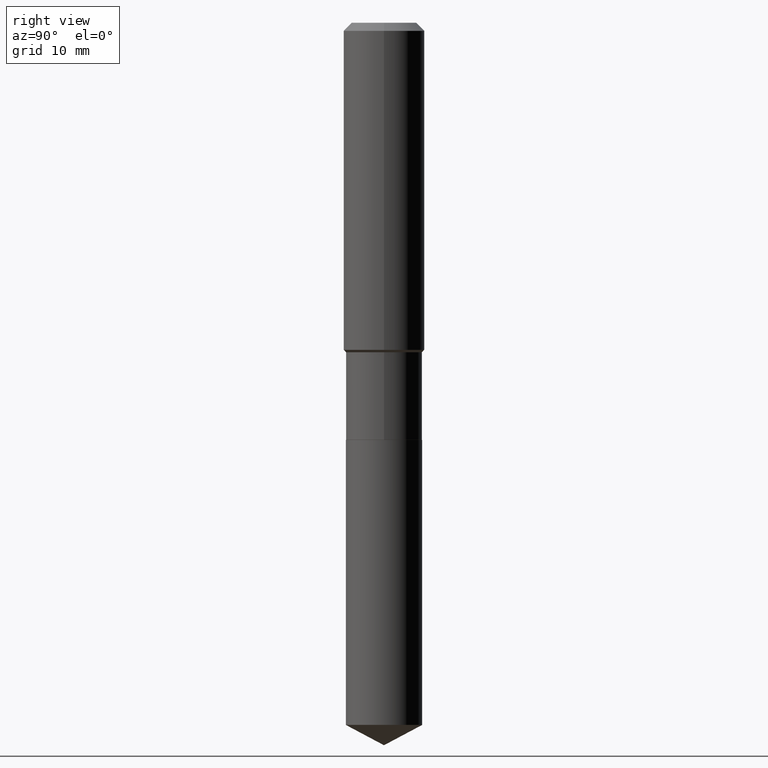
[diagram: clean part render]
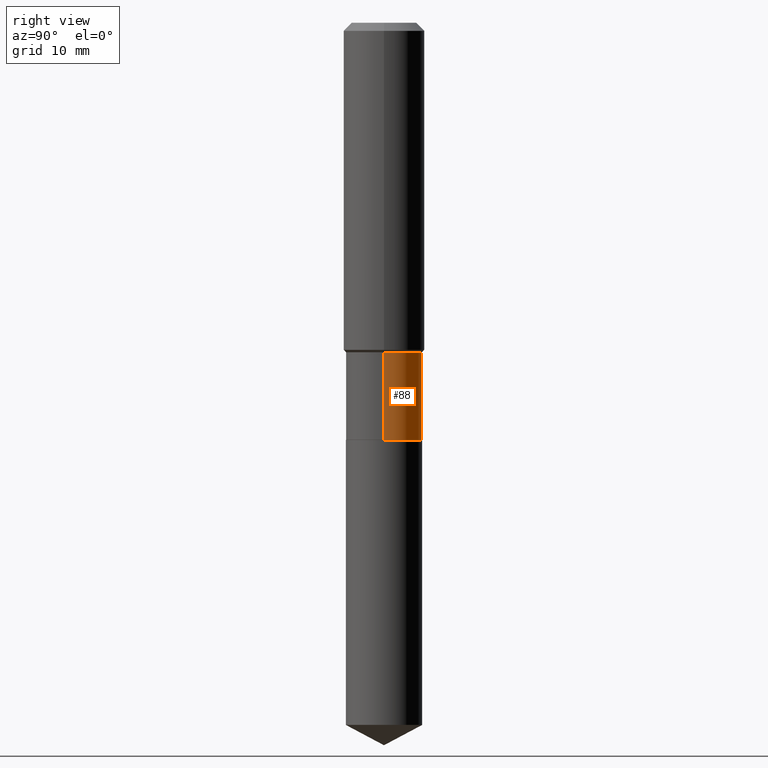
[diagram: same view with one face highlighted and labeled with its STEP entity id]
A machine part, right view. The second image highlights one B-rep face of the part: STEP entity #88.
In plain terms, the highlighted cylindrical surface (partial cylindrical patch) has radius 4.7003 mm, axis along (-0, 0, 1).
Its self-contained STEP definition (entity closure, byte-faithful):
#2 = DIRECTION ( 'NONE',  ( -2.445468806185136877E-29, 3.491481338843145188E-15, 1.000000000000000000 ) ) ;
#16 = AXIS2_PLACEMENT_3D ( 'NONE', #226, #111, #412 ) ;
#25 = CARTESIAN_POINT ( 'NONE',  ( -0.1850499999999999368, 1.314859332524064945E-15, -9.102489384516700747E-30 ) ) ;
#52 = EDGE_CURVE ( 'NONE', #472, #109, #397, .T. ) ;
#83 = ORIENTED_EDGE ( 'NONE', *, *, #486, .F. ) ;
#88 = ADVANCED_FACE ( 'NONE', ( #163 ), #378, .T. ) ;
#109 = VERTEX_POINT ( 'NONE', #384 ) ;
#111 = DIRECTION ( 'NONE',  ( -2.445468806185136597E-29, 3.491481338843145583E-15, 1.000000000000000000 ) ) ;
#118 = ORIENTED_EDGE ( 'NONE', *, *, #336, .T. ) ;
#163 = FACE_OUTER_BOUND ( 'NONE', #277, .T. ) ;
#183 = ORIENTED_EDGE ( 'NONE', *, *, #52, .T. ) ;
#189 = DIRECTION ( 'NONE',  ( -2.445468806185136877E-29, 3.491481338843145188E-15, 1.000000000000000000 ) ) ;
#223 = CIRCLE ( 'NONE', #316, 0.1850499999999999923 ) ;
#226 = CARTESIAN_POINT ( 'NONE',  ( 3.907859152283848022E-29, -5.579387179471346287E-15, -1.597999999999999643 ) ) ;
#245 = CARTESIAN_POINT ( 'NONE',  ( 0.1850499999999999090, -6.871584422977188194E-15, -1.597999999999999643 ) ) ;
#270 = DIRECTION ( 'NONE',  ( 1.000000000000000000, -6.982962677686267499E-15, 4.876176775795935793E-29 ) ) ;
#275 = AXIS2_PLACEMENT_3D ( 'NONE', #346, #455, #270 ) ;
#277 = EDGE_LOOP ( 'NONE', ( #118, #183, #83, #479 ) ) ;
#279 = VERTEX_POINT ( 'NONE', #245 ) ;
#288 = DIRECTION ( 'NONE',  ( 1.000000000000000000, -6.982962677686267499E-15, 0.000000000000000000 ) ) ;
#315 = CARTESIAN_POINT ( 'NONE',  ( 4.947427941793149075E-29, -7.063615896613566997E-15, -2.023099999999999898 ) ) ;
#316 = AXIS2_PLACEMENT_3D ( 'NONE', #315, #351, #288 ) ;
#336 = EDGE_CURVE ( 'NONE', #436, #472, #223, .T. ) ;
#346 = CARTESIAN_POINT ( 'NONE',  ( 0.000000000000000000, 0.000000000000000000, 0.000000000000000000 ) ) ;
#351 = DIRECTION ( 'NONE',  ( -2.445468806185136597E-29, 3.491481338843145583E-15, 1.000000000000000000 ) ) ;
#361 = CARTESIAN_POINT ( 'NONE',  ( -0.1850499999999999923, -5.006642205518390514E-15, -2.023099999999999898 ) ) ;
#370 = CARTESIAN_POINT ( 'NONE',  ( 0.1850499999999999368, -1.292197243505843287E-15, 9.023365123610376264E-30 ) ) ;
#378 = CYLINDRICAL_SURFACE ( 'NONE', #275, 0.1850499999999999368 ) ;
#380 = CIRCLE ( 'NONE', #16, 0.1850499999999999090 ) ;
#384 = CARTESIAN_POINT ( 'NONE',  ( -0.1850499999999999090, -5.006642205518391303E-15, -1.597999999999999643 ) ) ;
#397 = LINE ( 'NONE', #25, #442 ) ;
#401 = EDGE_CURVE ( 'NONE', #436, #279, #418, .T. ) ;
#412 = DIRECTION ( 'NONE',  ( 1.000000000000000000, -6.982962677686265133E-15, 0.000000000000000000 ) ) ;
#413 = CARTESIAN_POINT ( 'NONE',  ( 0.1850499999999999923, -8.355813140119411270E-15, -2.023099999999999898 ) ) ;
#418 = LINE ( 'NONE', #370, #475 ) ;
#436 = VERTEX_POINT ( 'NONE', #413 ) ;
#442 = VECTOR ( 'NONE', #2, 39.37007874015748143 ) ;
#455 = DIRECTION ( 'NONE',  ( -2.445468806185136597E-29, 3.491481338843145583E-15, 1.000000000000000000 ) ) ;
#472 = VERTEX_POINT ( 'NONE', #361 ) ;
#475 = VECTOR ( 'NONE', #189, 39.37007874015748143 ) ;
#479 = ORIENTED_EDGE ( 'NONE', *, *, #401, .F. ) ;
#486 = EDGE_CURVE ( 'NONE', #279, #109, #380, .T. ) ;